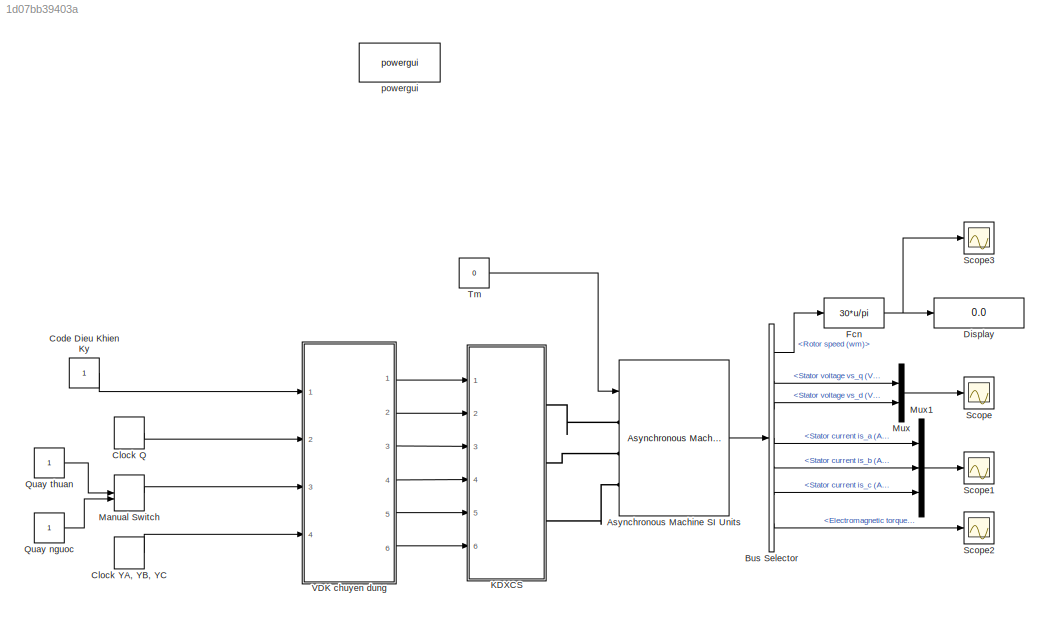
MODEL slx_1d07bb39403a
KIND model
CONFIG AbsTol = auto
CONFIG EnableMultiTasking = off
CONFIG FixedStep = auto
CONFIG MaxStep = auto
CONFIG MinStep = auto
CONFIG RelTol = 1e-3
CONFIG SampleTimeConstraint = Unconstrained
CONFIG Solver = VariableStepAuto
CONFIG SolverName = VariableStepAuto
CONFIG StartTime = 0.0
CONFIG StopTime = 10.0
BLOCK [Reference] Asynchronous Machine SI Units  REF=powerlib/Machines/Asynchronous Machine
SI Units
  Ports = [1, 1, 0, 0, 0, 3]
  SourceBlock = powerlib/Machines/Asynchronous Machine\nSI Units
  SourceProductBaseCode = PS
  SourceProductName = Simscape Electrical
  SourceType = Asynchronous Machine
BLOCK [BusSelector] Bus Selector
  OutputAsBus = off
  OutputSignals = Mechanical.Rotor speed (wm),Stator measurements.Stator voltage vs_q (V),Stator measurements.Stator voltage vs_d (V),Stator measurements.Stator current is_a (A),Stator measurements.Stator current is_b (A),Stator measurements.Stator current is_c (A),Mechanical.Electromagnetic torque Te (N*m)
  Ports = [1, 7]
BLOCK [DiscretePulseGenerator] Clock Q
  Period = 0.00000992157
  Ports = [0, 1]
  PulseType = Time based
  PulseWidth = 50
BLOCK [DiscretePulseGenerator] Clock YA, YB, YC
  Period = 0.002
  Ports = [0, 1]
  PulseType = Time based
  PulseWidth = 50
BLOCK [Constant] Code Dieu Khien Ky
BLOCK [Display] Display
  Decimation = 1
  Ports = [1]
BLOCK [Fcn] Fcn
  Expr = 30*u/pi
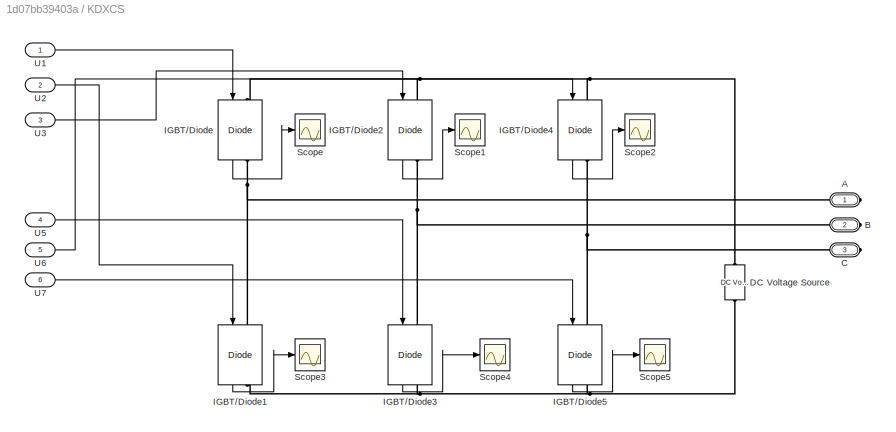
BLOCK [SubSystem] KDXCS
  Ports = [6, 0, 0, 0, 0, 0, 3]
  RequestExecContextInheritance = off
BLOCK [PMIOPort] KDXCS/A
  Side = Right
BLOCK [PMIOPort] KDXCS/B
  Port = 2
  Side = Right
BLOCK [PMIOPort] KDXCS/C
  Port = 3
  Side = Right
BLOCK [Reference] KDXCS/DC Voltage Source  REF=powerlib/Electrical
Sources/DC Voltage Source
  Ports = [0, 0, 0, 0, 0, 1, 1]
  SourceBlock = powerlib/Electrical\nSources/DC Voltage Source
  SourceProductBaseCode = PS
  SourceProductName = Simscape Electrical
  SourceType = DC Voltage Source
BLOCK [Reference] KDXCS/IGBT//Diode  REF=powerlib/Power
Electronics/IGBT//Diode
  Ports = [1, 1, 0, 0, 0, 1, 1]
  SourceBlock = powerlib/Power\nElectronics/IGBT//Diode
  SourceProductBaseCode = PS
  SourceProductName = Simscape Electrical
  SourceType = IGBT/Diode
BLOCK [Reference] KDXCS/IGBT//Diode1  REF=powerlib/Power
Electronics/IGBT//Diode
  Ports = [1, 1, 0, 0, 0, 1, 1]
  SourceBlock = powerlib/Power\nElectronics/IGBT//Diode
  SourceProductBaseCode = PS
  SourceProductName = Simscape Electrical
  SourceType = IGBT/Diode
BLOCK [Reference] KDXCS/IGBT//Diode2  REF=powerlib/Power
Electronics/IGBT//Diode
  Ports = [1, 1, 0, 0, 0, 1, 1]
  SourceBlock = powerlib/Power\nElectronics/IGBT//Diode
  SourceProductBaseCode = PS
  SourceProductName = Simscape Electrical
  SourceType = IGBT/Diode
BLOCK [Reference] KDXCS/IGBT//Diode3  REF=powerlib/Power
Electronics/IGBT//Diode
  Ports = [1, 1, 0, 0, 0, 1, 1]
  SourceBlock = powerlib/Power\nElectronics/IGBT//Diode
  SourceProductBaseCode = PS
  SourceProductName = Simscape Electrical
  SourceType = IGBT/Diode
BLOCK [Reference] KDXCS/IGBT//Diode4  REF=powerlib/Power
Electronics/IGBT//Diode
  Ports = [1, 1, 0, 0, 0, 1, 1]
  SourceBlock = powerlib/Power\nElectronics/IGBT//Diode
  SourceProductBaseCode = PS
  SourceProductName = Simscape Electrical
  SourceType = IGBT/Diode
BLOCK [Reference] KDXCS/IGBT//Diode5  REF=powerlib/Power
Electronics/IGBT//Diode
  Ports = [1, 1, 0, 0, 0, 1, 1]
  SourceBlock = powerlib/Power\nElectronics/IGBT//Diode
  SourceProductBaseCode = PS
  SourceProductName = Simscape Electrical
  SourceType = IGBT/Diode
BLOCK [Scope] KDXCS/Scope
  Floating = off
  NumInputPorts = 1
  Ports = [1]
  ScopeSpecificationString = Simulink.scopes.TimeScopeBlockCfg('CurrentConfiguration', extmgr.ConfigurationSet(extmgr.Configuration('Core','General UI',true),extmgr.Configuration('Core','Source UI',true),extmgr.Configuration('Sources','WiredSimulink',true,'DataLoggingVariableName','ScopeData1'),extmgr.Configuration('Visuals','Time Domain',true),extmgr.Configuration('Tools','Plot Navigation',true),extmgr.Configuration('Tools',...<+40ch>
BLOCK [Scope] KDXCS/Scope1
  Floating = off
  NumInputPorts = 1
  Ports = [1]
  ScopeSpecificationString = Simulink.scopes.TimeScopeBlockCfg('CurrentConfiguration', extmgr.ConfigurationSet(extmgr.Configuration('Core','General UI',true),extmgr.Configuration('Core','Source UI',true),extmgr.Configuration('Sources','WiredSimulink',true,'DataLoggingVariableName','ScopeData2'),extmgr.Configuration('Visuals','Time Domain',true),extmgr.Configuration('Tools','Plot Navigation',true),extmgr.Configuration('Tools',...<+40ch>
BLOCK [Scope] KDXCS/Scope2
  Floating = off
  NumInputPorts = 1
  Ports = [1]
  ScopeSpecificationString = Simulink.scopes.TimeScopeBlockCfg('CurrentConfiguration', extmgr.ConfigurationSet(extmgr.Configuration('Core','General UI',true),extmgr.Configuration('Core','Source UI',true),extmgr.Configuration('Sources','WiredSimulink',true,'DataLoggingVariableName','ScopeData3'),extmgr.Configuration('Visuals','Time Domain',true),extmgr.Configuration('Tools','Plot Navigation',true),extmgr.Configuration('Tools',...<+40ch>
BLOCK [Scope] KDXCS/Scope3
  Floating = off
  NumInputPorts = 1
  Ports = [1]
  ScopeSpecificationString = Simulink.scopes.TimeScopeBlockCfg('CurrentConfiguration', extmgr.ConfigurationSet(extmgr.Configuration('Core','General UI',true),extmgr.Configuration('Core','Source UI',true),extmgr.Configuration('Sources','WiredSimulink',true,'DataLoggingVariableName','ScopeData4'),extmgr.Configuration('Visuals','Time Domain',true),extmgr.Configuration('Tools','Plot Navigation',true),extmgr.Configuration('Tools',...<+40ch>
BLOCK [Scope] KDXCS/Scope4
  Floating = off
  NumInputPorts = 1
  Ports = [1]
  ScopeSpecificationString = Simulink.scopes.TimeScopeBlockCfg('CurrentConfiguration', extmgr.ConfigurationSet(extmgr.Configuration('Core','General UI',true),extmgr.Configuration('Core','Source UI',true),extmgr.Configuration('Sources','WiredSimulink',true,'DataLoggingVariableName','ScopeData5'),extmgr.Configuration('Visuals','Time Domain',true),extmgr.Configuration('Tools','Plot Navigation',true),extmgr.Configuration('Tools',...<+40ch>
BLOCK [Scope] KDXCS/Scope5
  Floating = off
  NumInputPorts = 1
  Ports = [1]
  ScopeSpecificationString = Simulink.scopes.TimeScopeBlockCfg('CurrentConfiguration', extmgr.ConfigurationSet(extmgr.Configuration('Core','General UI',true),extmgr.Configuration('Core','Source UI',true),extmgr.Configuration('Sources','WiredSimulink',true,'DataLoggingVariableName','ScopeData6'),extmgr.Configuration('Visuals','Time Domain',true),extmgr.Configuration('Tools','Plot Navigation',true),extmgr.Configuration('Tools',...<+40ch>
BLOCK [Inport] KDXCS/U1
  IconDisplay = Port number
BLOCK [Inport] KDXCS/U2
  IconDisplay = Port number
  Port = 2
BLOCK [Inport] KDXCS/U3
  IconDisplay = Port number
  Port = 3
BLOCK [Inport] KDXCS/U5
  IconDisplay = Port number
  Port = 4
BLOCK [Inport] KDXCS/U6
  IconDisplay = Port number
  Port = 5
BLOCK [Inport] KDXCS/U7
  IconDisplay = Port number
  Port = 6
BLOCK [ManualSwitch] Manual Switch
BLOCK [Mux] Mux
  DisplayOption = bar
  Inputs = 2
  Ports = [2, 1]
BLOCK [Mux] Mux1
  DisplayOption = bar
  Inputs = 3
  Ports = [3, 1]
BLOCK [Constant] Quay nguoc
BLOCK [Constant] Quay thuan
BLOCK [Scope] Scope
  Floating = off
  NumInputPorts = 1
  Ports = [1]
  ScopeSpecificationString = Simulink.scopes.TimeScopeBlockCfg('CurrentConfiguration', extmgr.ConfigurationSet(extmgr.Configuration('Core','General UI',true),extmgr.Configuration('Core','Source UI',true),extmgr.Configuration('Sources','WiredSimulink',true,'DataLoggingVariableName','ScopeData7'),extmgr.Configuration('Visuals','Time Domain',true),extmgr.Configuration('Tools','Plot Navigation',true),extmgr.Configuration('Tools',...<+40ch>
BLOCK [Scope] Scope1
  Floating = off
  NumInputPorts = 1
  Ports = [1]
  ScopeSpecificationString = Simulink.scopes.TimeScopeBlockCfg('CurrentConfiguration', extmgr.ConfigurationSet(extmgr.Configuration('Core','General UI',true),extmgr.Configuration('Core','Source UI',true),extmgr.Configuration('Sources','WiredSimulink',true,'DataLoggingVariableName','ScopeData8'),extmgr.Configuration('Visuals','Time Domain',true),extmgr.Configuration('Tools','Plot Navigation',true),extmgr.Configuration('Tools',...<+40ch>
BLOCK [Scope] Scope2
  Floating = off
  NumInputPorts = 1
  Ports = [1]
  ScopeSpecificationString = Simulink.scopes.TimeScopeBlockCfg('CurrentConfiguration', extmgr.ConfigurationSet(extmgr.Configuration('Core','General UI',true),extmgr.Configuration('Core','Source UI',true),extmgr.Configuration('Sources','WiredSimulink',true,'DataLoggingVariableName','ScopeData9'),extmgr.Configuration('Visuals','Time Domain',true),extmgr.Configuration('Tools','Plot Navigation',true),extmgr.Configuration('Tools',...<+40ch>
BLOCK [Scope] Scope3
  Floating = off
  NumInputPorts = 1
  Ports = [1]
  ScopeSpecificationString = Simulink.scopes.TimeScopeBlockCfg('CurrentConfiguration', extmgr.ConfigurationSet(extmgr.Configuration('Core','General UI',true),extmgr.Configuration('Core','Source UI',true),extmgr.Configuration('Sources','WiredSimulink',true,'DataLoggingVariableName','ScopeData10'),extmgr.Configuration('Visuals','Time Domain',true),extmgr.Configuration('Tools','Plot Navigation',true),extmgr.Configuration('Tools'...<+41ch>
BLOCK [Constant] Tm
  Value = 0
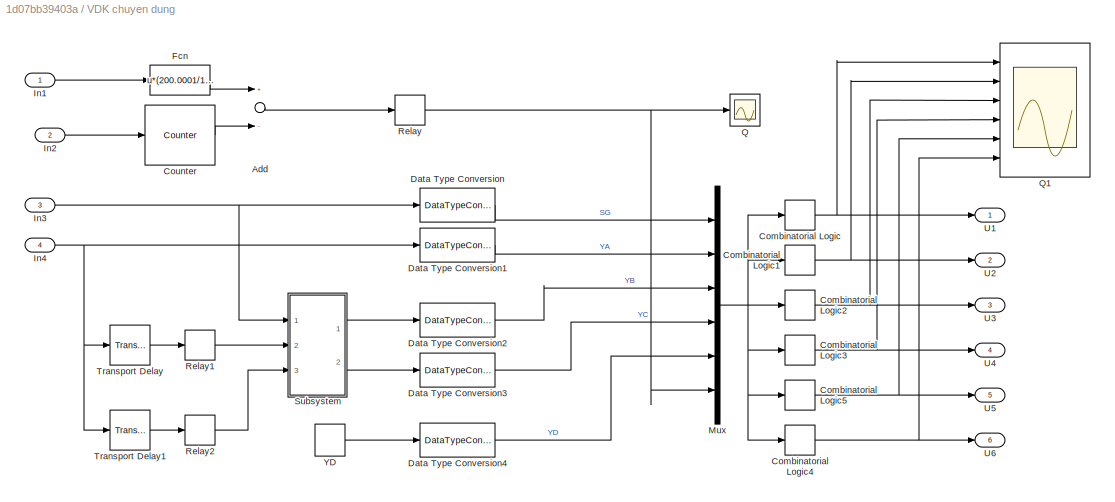
BLOCK [SubSystem] VDK chuyen dung
  Ports = [4, 6]
  RequestExecContextInheritance = off
BLOCK [Sum] VDK chuyen dung/Add
  InputSameDT = off
  Inputs = +-
  OutDataTypeStr = Inherit: Inherit via internal rule
  Ports = [2, 1]
  SaturateOnIntegerOverflow = off
BLOCK [CombinatorialLogic] VDK chuyen dung/Combinatorial Logic
  TruthTable = [0|1;0|1;0|1;0|1;1;0;0;0;1;0;1;0;1;0;1;0;1;0;0;1;1;1;1;1;1;1;1;1;0|1;0|1;0|1;0|1;0|1;0|1;0|1;0|1;1;1;1;1;1;1;1;1;1;0;0;0;1;0;1;0;1;0;1;0;1;0;0;1; 0|1;0|1;0|1;0|1;]
BLOCK [CombinatorialLogic] VDK chuyen dung/Combinatorial Logic1
  TruthTable = [0|1;0|1;0|1;0|1;0;0;0;1;0;1;0;1;0;1;0;1;0;0;0;0;0;0;0;0;0;0;0;0;0|1;0|1;0|1;0|1;0|1;0|1;0|1;0|1;0;0;0;0;0;0;0;0;0;0;0;1;0;1;0;1;0;1;0;1;0;0;0;0; 0|1;0|1;0|1;0|1;]
BLOCK [CombinatorialLogic] VDK chuyen dung/Combinatorial Logic2
  TruthTable = [0|1;0|1;0|1;0|1;1;0;1;0;1;0;0;1;1;1;1;1;1;1;1;1;1;0;0;0;1;0;1;0;0|1;0|1;0|1;0|1;0|1;0|1;0|1;0|1;1;0;1;0;1;0;0;1;1;1;1;1;1;1;1;1;1;0;0;0;1;0;1;0; 0|1;0|1;0|1;0|1;]
BLOCK [CombinatorialLogic] VDK chuyen dung/Combinatorial Logic3
  TruthTable = [0|1;0|1;0|1;0|1;0;1;0;1;0;0;0;0;0;0;0;0;0;0;0;0;0;0;0;1;0;1;0;1;0|1;0|1;0|1;0|1;0|1;0|1;0|1;0|1;0;1;0;1;0;0;0;0;0;0;0;0;0;0;0;0;0;0;0;1;0;1;0;1; 0|1;0|1;0|1;0|1;]
BLOCK [CombinatorialLogic] VDK chuyen dung/Combinatorial Logic4
  TruthTable = [0|1;0|1;0|1;0|1;0;0;0;0;0;0;0;0;0;0;0;1;0;1;0;1;0;1;0;1;0;0;0;0;0|1;0|1;0|1;0|1;0|1;0|1;0|1;0|1;0;0;0;1;0;1;0;1;0;1;0;1;0;0;0;0;0;0;0;0;0;0;0;0;0|1;0|1;0|1;0|1;]
BLOCK [CombinatorialLogic] VDK chuyen dung/Combinatorial Logic5
  TruthTable = [0|1;0|1;0|1;0|1;1;1;1;1;1;1;1;1;1;0;0;0;1;0;1;0;1;0;1;0;1;0;0;1;0|1;0|1;0|1;0|1;0|1;0|1;0|1;0|1;1;0;0;0;1;0;1;0;1;0;1;0;1;0;0;1;1;1;1;1;1;1;1;1; 0|1;0|1;0|1;0|1;]
BLOCK [Reference] VDK chuyen dung/Counter  REF=dspswit3/Counter
  Ports = [1, 1]
  SourceBlock = dspswit3/Counter
  SourceProductBaseCode = DS
  SourceProductName = DSP System Toolbox
  SourceType = Counter
BLOCK [DataTypeConversion] VDK chuyen dung/Data Type Conversion
  OutDataTypeStr = boolean
  RndMeth = Floor
  SaturateOnIntegerOverflow = off
BLOCK [DataTypeConversion] VDK chuyen dung/Data Type Conversion1
  OutDataTypeStr = boolean
  RndMeth = Floor
  SaturateOnIntegerOverflow = off
BLOCK [DataTypeConversion] VDK chuyen dung/Data Type Conversion2
  OutDataTypeStr = boolean
  RndMeth = Floor
  SaturateOnIntegerOverflow = off
BLOCK [DataTypeConversion] VDK chuyen dung/Data Type Conversion3
  OutDataTypeStr = boolean
  RndMeth = Floor
  SaturateOnIntegerOverflow = off
BLOCK [DataTypeConversion] VDK chuyen dung/Data Type Conversion4
  OutDataTypeStr = boolean
  RndMeth = Floor
  SaturateOnIntegerOverflow = off
BLOCK [Fcn] VDK chuyen dung/Fcn
  Expr = u*(200.0001/127)
BLOCK [Inport] VDK chuyen dung/In1
  IconDisplay = Port number
BLOCK [Inport] VDK chuyen dung/In2
  IconDisplay = Port number
  Port = 2
BLOCK [Inport] VDK chuyen dung/In3
  IconDisplay = Port number
  Port = 3
BLOCK [Inport] VDK chuyen dung/In4
  IconDisplay = Port number
  Port = 4
BLOCK [Mux] VDK chuyen dung/Mux
  DisplayOption = bar
  Inputs = 6
  Ports = [6, 1]
BLOCK [Scope] VDK chuyen dung/Q
  Floating = off
  NumInputPorts = 1
  Ports = [1]
  ScopeSpecificationString = Simulink.scopes.TimeScopeBlockCfg('CurrentConfiguration', extmgr.ConfigurationSet(extmgr.Configuration('Core','General UI',true),extmgr.Configuration('Core','Source UI',true),extmgr.Configuration('Sources','WiredSimulink',true,'DataLoggingVariableName','ScopeData2'),extmgr.Configuration('Visuals','Time Domain',true),extmgr.Configuration('Tools','Plot Navigation',true),extmgr.Configuration('Tools',...<+40ch>
BLOCK [Scope] VDK chuyen dung/Q1
  Floating = off
  NumInputPorts = 6
  Ports = [6]
  ScopeSpecificationString = Simulink.scopes.TimeScopeBlockCfg('CurrentConfiguration', extmgr.ConfigurationSet(extmgr.Configuration('Core','General UI',true),extmgr.Configuration('Core','Source UI',true),extmgr.Configuration('Sources','WiredSimulink',true,'DataLoggingVariableName','ScopeData3'),extmgr.Configuration('Visuals','Time Domain',true),extmgr.Configuration('Tools','Plot Navigation',true),extmgr.Configuration('Tools',...<+40ch>
BLOCK [Relay] VDK chuyen dung/Relay
BLOCK [Relay] VDK chuyen dung/Relay1
BLOCK [Relay] VDK chuyen dung/Relay2
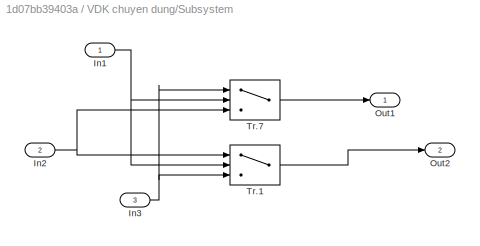
BLOCK [SubSystem] VDK chuyen dung/Subsystem
  Ports = [3, 2]
  RequestExecContextInheritance = off
BLOCK [Inport] VDK chuyen dung/Subsystem/In1
  IconDisplay = Port number
BLOCK [Inport] VDK chuyen dung/Subsystem/In2
  IconDisplay = Port number
  Port = 2
BLOCK [Inport] VDK chuyen dung/Subsystem/In3
  IconDisplay = Port number
  Port = 3
BLOCK [Outport] VDK chuyen dung/Subsystem/Out1
  IconDisplay = Port number
BLOCK [Outport] VDK chuyen dung/Subsystem/Out2
  IconDisplay = Port number
  Port = 2
BLOCK [Switch] VDK chuyen dung/Subsystem/Tr.1
  Criteria = u2 > Threshold
  InputSameDT = off
  SaturateOnIntegerOverflow = off
BLOCK [Switch] VDK chuyen dung/Subsystem/Tr.7
  Criteria = u2 > Threshold
  InputSameDT = off
  SaturateOnIntegerOverflow = off
BLOCK [TransportDelay] VDK chuyen dung/Transport Delay
  DelayTime = 0.04/3
  Ports = [1, 1]
  TransDelayFeedthrough = on
BLOCK [TransportDelay] VDK chuyen dung/Transport Delay1
  DelayTime = 0.04/3
  Ports = [1, 1]
  TransDelayFeedthrough = on
BLOCK [Outport] VDK chuyen dung/U1
  IconDisplay = Port number
BLOCK [Outport] VDK chuyen dung/U2
  IconDisplay = Port number
  Port = 2
BLOCK [Outport] VDK chuyen dung/U3
  IconDisplay = Port number
  Port = 3
BLOCK [Outport] VDK chuyen dung/U4
  IconDisplay = Port number
  Port = 4
BLOCK [Outport] VDK chuyen dung/U5
  IconDisplay = Port number
  Port = 5
BLOCK [Outport] VDK chuyen dung/U6
  IconDisplay = Port number
  Port = 6
BLOCK [DiscretePulseGenerator] VDK chuyen dung/YD
  Period = 0.002/6
  Ports = [0, 1]
  PulseType = Time based
  PulseWidth = 50
BLOCK [Reference] powergui  REF=powerlib/powergui
  Ports = []
  Priority = 1
  SourceBlock = powerlib/powergui
  SourceProductBaseCode = PS
  SourceProductName = Simscape Electrical
  SourceType = PSB option menu block
LINE Asynchronous Machine SI Units:1 -> Bus Selector:1
LINE Bus Selector:1 -> Fcn:1
LINE Bus Selector:2 -> Mux:1
LINE Bus Selector:3 -> Mux:2
LINE Bus Selector:4 -> Mux1:1
LINE Bus Selector:5 -> Mux1:2
LINE Bus Selector:6 -> Mux1:3
LINE Bus Selector:7 -> Scope2:1
LINE Clock Q:1 -> VDK chuyen dung:2
LINE Clock YA, YB, YC:1 -> VDK chuyen dung:4
LINE Code Dieu Khien Ky:1 -> VDK chuyen dung:1
NET Fcn:1 -> Display:1, Scope3:1
LINE KDXCS/IGBT//Diode1:1 -> KDXCS/Scope3:1
LINE KDXCS/IGBT//Diode2:1 -> KDXCS/Scope1:1
LINE KDXCS/IGBT//Diode3:1 -> KDXCS/Scope4:1
LINE KDXCS/IGBT//Diode4:1 -> KDXCS/Scope2:1
LINE KDXCS/IGBT//Diode5:1 -> KDXCS/Scope5:1
LINE KDXCS/IGBT//Diode:1 -> KDXCS/Scope:1
LINE KDXCS/U1:1 -> KDXCS/IGBT//Diode:1
LINE KDXCS/U2:1 -> KDXCS/IGBT//Diode1:1
LINE KDXCS/U3:1 -> KDXCS/IGBT//Diode2:1
LINE KDXCS/U5:1 -> KDXCS/IGBT//Diode3:1
LINE KDXCS/U6:1 -> KDXCS/IGBT//Diode4:1
LINE KDXCS/U7:1 -> KDXCS/IGBT//Diode5:1
LINE Manual Switch:1 -> VDK chuyen dung:3
LINE Mux1:1 -> Scope1:1
LINE Mux:1 -> Scope:1
LINE Quay nguoc:1 -> Manual Switch:2
LINE Quay thuan:1 -> Manual Switch:1
LINE Tm:1 -> Asynchronous Machine SI Units:1
LINE VDK chuyen dung/Add:1 -> VDK chuyen dung/Relay:1
NET VDK chuyen dung/Combinatorial Logic1:1 -> VDK chuyen dung/Q1:2, VDK chuyen dung/U2:1
NET VDK chuyen dung/Combinatorial Logic2:1 -> VDK chuyen dung/Q1:3, VDK chuyen dung/U3:1
NET VDK chuyen dung/Combinatorial Logic3:1 -> VDK chuyen dung/Q1:4, VDK chuyen dung/U4:1
NET VDK chuyen dung/Combinatorial Logic4:1 -> VDK chuyen dung/Q1:6, VDK chuyen dung/U6:1
NET VDK chuyen dung/Combinatorial Logic5:1 -> VDK chuyen dung/Q1:5, VDK chuyen dung/U5:1
NET VDK chuyen dung/Combinatorial Logic:1 -> VDK chuyen dung/Q1:1, VDK chuyen dung/U1:1
LINE VDK chuyen dung/Counter:1 -> VDK chuyen dung/Add:2
LINE VDK chuyen dung/Data Type Conversion1:1 -> VDK chuyen dung/Mux:2
LINE VDK chuyen dung/Data Type Conversion2:1 -> VDK chuyen dung/Mux:3
LINE VDK chuyen dung/Data Type Conversion3:1 -> VDK chuyen dung/Mux:4
LINE VDK chuyen dung/Data Type Conversion4:1 -> VDK chuyen dung/Mux:5
LINE VDK chuyen dung/Data Type Conversion:1 -> VDK chuyen dung/Mux:1
LINE VDK chuyen dung/Fcn:1 -> VDK chuyen dung/Add:1
LINE VDK chuyen dung/In1:1 -> VDK chuyen dung/Fcn:1
LINE VDK chuyen dung/In2:1 -> VDK chuyen dung/Counter:1
NET VDK chuyen dung/In3:1 -> VDK chuyen dung/Data Type Conversion:1, VDK chuyen dung/Subsystem:1
NET VDK chuyen dung/In4:1 -> VDK chuyen dung/Data Type Conversion1:1, VDK chuyen dung/Transport Delay1:1, VDK chuyen dung/Transport Delay:1
NET VDK chuyen dung/Mux:1 -> VDK chuyen dung/Combinatorial Logic1:1, VDK chuyen dung/Combinatorial Logic2:1, VDK chuyen dung/Combinatorial Logic3:1, VDK chuyen dung/Combinatorial Logic4:1, VDK chuyen dung/Combinatorial Logic5:1, VDK chuyen dung/Combinatorial Logic:1
LINE VDK chuyen dung/Relay1:1 -> VDK chuyen dung/Subsystem:2
LINE VDK chuyen dung/Relay2:1 -> VDK chuyen dung/Subsystem:3
NET VDK chuyen dung/Relay:1 -> VDK chuyen dung/Mux:6, VDK chuyen dung/Q:1
NET VDK chuyen dung/Subsystem/In1:1 -> VDK chuyen dung/Subsystem/Tr.1:2, VDK chuyen dung/Subsystem/Tr.7:2
NET VDK chuyen dung/Subsystem/In2:1 -> VDK chuyen dung/Subsystem/Tr.1:1, VDK chuyen dung/Subsystem/Tr.7:3
NET VDK chuyen dung/Subsystem/In3:1 -> VDK chuyen dung/Subsystem/Tr.1:3, VDK chuyen dung/Subsystem/Tr.7:1
LINE VDK chuyen dung/Subsystem/Tr.1:1 -> VDK chuyen dung/Subsystem/Out2:1
LINE VDK chuyen dung/Subsystem/Tr.7:1 -> VDK chuyen dung/Subsystem/Out1:1
LINE VDK chuyen dung/Subsystem:1 -> VDK chuyen dung/Data Type Conversion2:1
LINE VDK chuyen dung/Subsystem:2 -> VDK chuyen dung/Data Type Conversion3:1
LINE VDK chuyen dung/Transport Delay1:1 -> VDK chuyen dung/Relay2:1
LINE VDK chuyen dung/Transport Delay:1 -> VDK chuyen dung/Relay1:1
LINE VDK chuyen dung/YD:1 -> VDK chuyen dung/Data Type Conversion4:1
LINE VDK chuyen dung:1 -> KDXCS:1
LINE VDK chuyen dung:2 -> KDXCS:2
LINE VDK chuyen dung:3 -> KDXCS:3
LINE VDK chuyen dung:4 -> KDXCS:4
LINE VDK chuyen dung:5 -> KDXCS:5
LINE VDK chuyen dung:6 -> KDXCS:6
PLINE Asynchronous Machine SI Units:LConn1 -- KDXCS:RConn1
PLINE Asynchronous Machine SI Units:LConn2 -- KDXCS:RConn2
PLINE Asynchronous Machine SI Units:LConn3 -- KDXCS:RConn3
PNET net1: KDXCS/A:RConn1 -- KDXCS/IGBT//Diode1:LConn1 -- KDXCS/IGBT//Diode:RConn1
PNET net2: KDXCS/B:RConn1 -- KDXCS/IGBT//Diode2:RConn1 -- KDXCS/IGBT//Diode3:LConn1
PNET net3: KDXCS/C:RConn1 -- KDXCS/IGBT//Diode4:RConn1 -- KDXCS/IGBT//Diode5:LConn1
PNET net4: KDXCS/DC Voltage Source:LConn1 -- KDXCS/IGBT//Diode1:RConn1 -- KDXCS/IGBT//Diode3:RConn1 -- KDXCS/IGBT//Diode5:RConn1
PNET net5: KDXCS/DC Voltage Source:RConn1 -- KDXCS/IGBT//Diode2:LConn1 -- KDXCS/IGBT//Diode4:LConn1 -- KDXCS/IGBT//Diode:LConn1
note: NET lines group one-source signal fan-out (src -> all destinations, sorted); 1:1 wires keep LINE; PNET lines group multi-terminal physical nets as a canonical sorted terminal list (undirected conserving connections); 2-terminal nets keep the pairwise PLINE form
